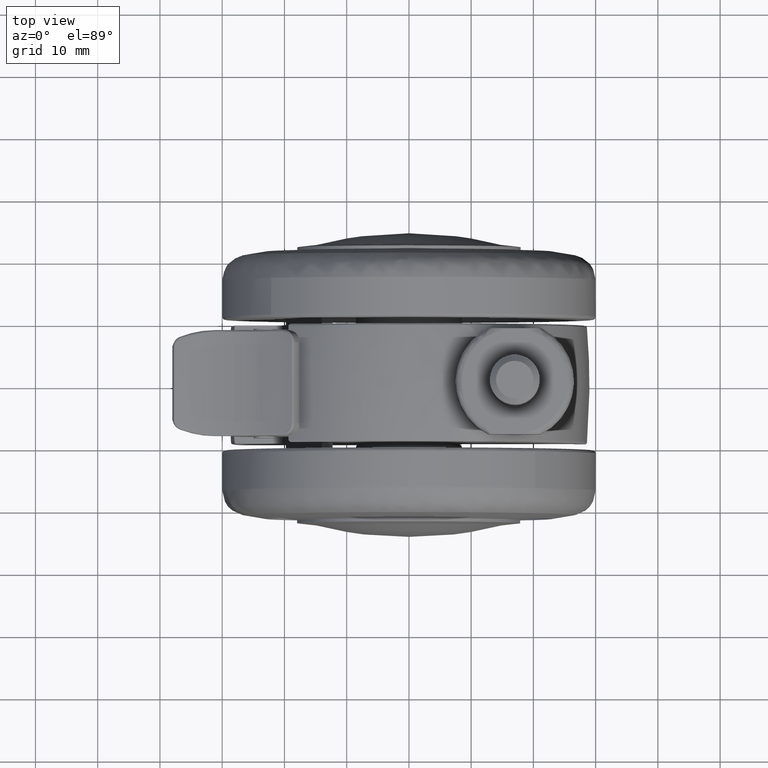
[diagram: clean part render]
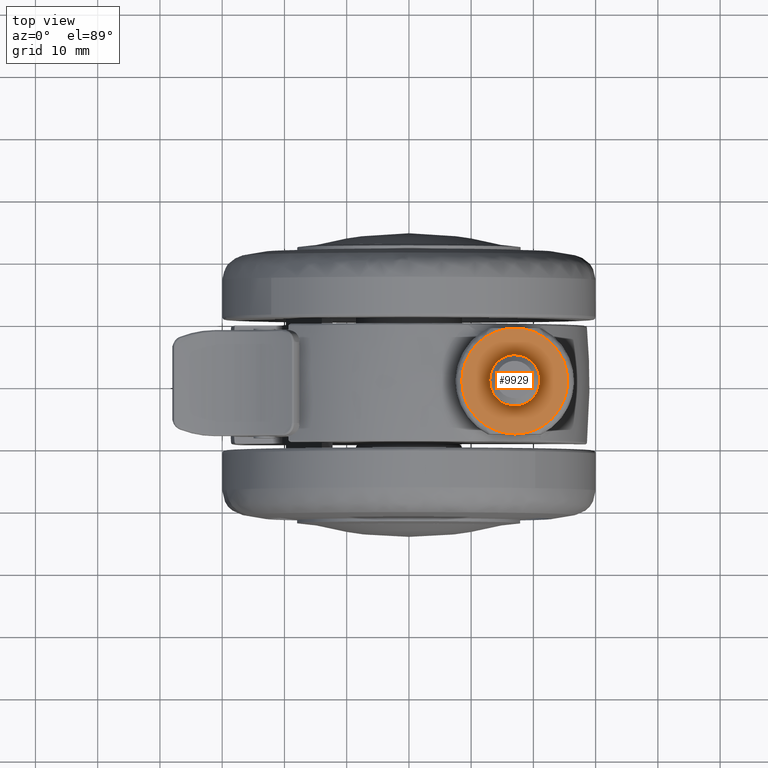
[diagram: same view with one face highlighted and labeled with its STEP entity id]
A machine part, top view. The second image highlights one B-rep face of the part: STEP entity #9929.
In plain terms, the highlighted face is a freeform B-spline surface patch.
Its self-contained STEP definition (entity closure, byte-faithful):
#7896=CARTESIAN_POINT('',(16.755805841640679,3.992539193674018,38.500000000000000));
#7897=VERTEX_POINT('',#7896);
#7903=CARTESIAN_POINT('',(13.0,0.0,38.500000000000000));
#7904=VERTEX_POINT('',#7903);
#7905=CARTESIAN_POINT('',(13.0,0.0,38.500000000000000));
#7906=CARTESIAN_POINT('',(13.000000000000004,3.762824267207531,38.500000000000007));
#7907=CARTESIAN_POINT('',(16.755805841640683,3.992539193674018,38.500000000000000));
#7915=(BOUNDED_CURVE()B_SPLINE_CURVE(2,(#7905,#7906,#7907),.UNSPECIFIED.,.F.,.U.)B_SPLINE_CURVE_WITH_KNOTS((3,3),(0.500000000000000,0.739332962222962),.UNSPECIFIED.)CURVE()GEOMETRIC_REPRESENTATION_ITEM()RATIONAL_B_SPLINE_CURVE((1.0,0.719603993305433,0.976072041632468))REPRESENTATION_ITEM(''));
#7916=EDGE_CURVE('',#7904,#7897,#7915,.T.);
#7918=CARTESIAN_POINT('',(21.0,0.0,38.500000000000000));
#7919=VERTEX_POINT('',#7918);
#7920=CARTESIAN_POINT('',(21.0,0.0,38.500000000000000));
#7921=CARTESIAN_POINT('',(21.000000000000004,-4.000000000000000,38.500000000000000));
#7922=CARTESIAN_POINT('',(17.0,-4.0,38.500000000000000));
#7923=CARTESIAN_POINT('',(13.000000000000004,-4.000000000000000,38.500000000000000));
#7924=CARTESIAN_POINT('',(13.0,0.0,38.500000000000000));
#7932=(BOUNDED_CURVE()B_SPLINE_CURVE(2,(#7920,#7921,#7922,#7923,#7924),.UNSPECIFIED.,.F.,.U.)B_SPLINE_CURVE_WITH_KNOTS((3,2,3),(0.0,0.250000000000000,0.500000000000000),.UNSPECIFIED.)CURVE()GEOMETRIC_REPRESENTATION_ITEM()RATIONAL_B_SPLINE_CURVE((1.0,0.707106781186548,1.0,0.707106781186548,1.0))REPRESENTATION_ITEM(''));
#7933=EDGE_CURVE('',#7919,#7904,#7932,.T.);
#7935=CARTESIAN_POINT('',(20.744574298804920,1.406471940967762,38.500000000000000));
#7936=VERTEX_POINT('',#7935);
#7937=CARTESIAN_POINT('',(20.744574298804913,1.406471940967762,38.499999999999993));
#7938=CARTESIAN_POINT('',(21.0,0.726429592158103,38.500000000000007));
#7939=CARTESIAN_POINT('',(21.0,0.0,38.500000000000000));
#7947=(BOUNDED_CURVE()B_SPLINE_CURVE(2,(#7937,#7938,#7939),.UNSPECIFIED.,.F.,.U.)B_SPLINE_CURVE_WITH_KNOTS((3,3),(0.940284167237474,1.0),.UNSPECIFIED.)CURVE()GEOMETRIC_REPRESENTATION_ITEM()RATIONAL_B_SPLINE_CURVE((0.893499550155038,0.930038550112232,1.0))REPRESENTATION_ITEM(''));
#7948=EDGE_CURVE('',#7936,#7919,#7947,.T.);
#7988=CARTESIAN_POINT('',(16.755805841640679,3.992539193674018,38.500000000000007));
#7989=CARTESIAN_POINT('',(16.877788946585131,4.000000000000001,38.500000000000007));
#7990=CARTESIAN_POINT('',(17.0,4.0,38.500000000000000));
#7991=CARTESIAN_POINT('',(19.770438314175482,4.000000000000000,38.500000000000000));
#7992=CARTESIAN_POINT('',(20.744574298804920,1.406471940967762,38.500000000000000));
#8000=(BOUNDED_CURVE()B_SPLINE_CURVE(2,(#7988,#7989,#7990,#7991,#7992),.UNSPECIFIED.,.F.,.U.)B_SPLINE_CURVE_WITH_KNOTS((3,2,3),(0.739332962222962,0.750000000000000,0.940284167237474),.UNSPECIFIED.)CURVE()GEOMETRIC_REPRESENTATION_ITEM()RATIONAL_B_SPLINE_CURVE((0.976072041632468,0.987502787881115,1.0,0.777068231074315,0.893499550155038))REPRESENTATION_ITEM(''));
#8001=EDGE_CURVE('',#7897,#7936,#8000,.T.);
#9367=CARTESIAN_POINT('',(17.0,-8.500000000000000,38.500000000000000));
#9368=VERTEX_POINT('',#9367);
#9423=CARTESIAN_POINT('',(17.0,8.500000000000000,38.500000000000000));
#9424=VERTEX_POINT('',#9423);
#9462=CARTESIAN_POINT('',(17.0,-8.500000000000000,38.500000000000000));
#9463=CARTESIAN_POINT('',(25.500000000000007,-8.500000000000002,38.500000000000000));
#9464=CARTESIAN_POINT('',(25.500000000000000,0.0,38.500000000000000));
#9465=CARTESIAN_POINT('',(25.500000000000007,8.500000000000002,38.500000000000000));
#9466=CARTESIAN_POINT('',(17.0,8.500000000000000,38.500000000000000));
#9474=(BOUNDED_CURVE()B_SPLINE_CURVE(2,(#9462,#9463,#9464,#9465,#9466),.UNSPECIFIED.,.F.,.U.)B_SPLINE_CURVE_WITH_KNOTS((3,2,3),(0.0,0.500000000000000,1.0),.UNSPECIFIED.)CURVE()GEOMETRIC_REPRESENTATION_ITEM()RATIONAL_B_SPLINE_CURVE((1.0,0.707106781186548,1.0,0.707106781186548,1.0))REPRESENTATION_ITEM(''));
#9475=EDGE_CURVE('',#9368,#9424,#9474,.T.);
#9734=CARTESIAN_POINT('',(17.0,8.500000000000000,38.500000000000000));
#9735=CARTESIAN_POINT('',(8.500000000000002,8.500000000000002,38.500000000000000));
#9736=CARTESIAN_POINT('',(8.500000000000000,0.0,38.500000000000000));
#9737=CARTESIAN_POINT('',(8.500000000000002,-8.500000000000002,38.500000000000000));
#9738=CARTESIAN_POINT('',(17.0,-8.500000000000000,38.500000000000000));
#9746=(BOUNDED_CURVE()B_SPLINE_CURVE(2,(#9734,#9735,#9736,#9737,#9738),.UNSPECIFIED.,.F.,.U.)B_SPLINE_CURVE_WITH_KNOTS((3,2,3),(0.0,0.500000000000000,1.0),.UNSPECIFIED.)CURVE()GEOMETRIC_REPRESENTATION_ITEM()RATIONAL_B_SPLINE_CURVE((1.0,0.707106781186548,1.0,0.707106781186548,1.0))REPRESENTATION_ITEM(''));
#9747=EDGE_CURVE('',#9424,#9368,#9746,.T.);
#9914=CARTESIAN_POINT('',(7.650850032949333,-9.349149967050698,38.500000000000000));
#9915=CARTESIAN_POINT('',(26.349150423026209,-9.349149967050698,38.500000000000000));
#9916=CARTESIAN_POINT('',(7.650850032949333,9.349150423026233,38.500000000000000));
#9917=CARTESIAN_POINT('',(26.349150423026209,9.349150423026233,38.500000000000000));
#9918=B_SPLINE_SURFACE_WITH_KNOTS('',1,1,((#9914,#9916),(#9915,#9917)),.UNSPECIFIED.,.F.,.F.,.U.,(2,2),(2,2),(0.0,18.698300390076870),(0.0,18.698300390076930),.UNSPECIFIED.);
#9919=ORIENTED_EDGE('',*,*,#9475,.T.);
#9920=ORIENTED_EDGE('',*,*,#9747,.T.);
#9921=EDGE_LOOP('',(#9919,#9920));
#9922=FACE_OUTER_BOUND('',#9921,.T.);
#9923=ORIENTED_EDGE('',*,*,#7933,.T.);
#9924=ORIENTED_EDGE('',*,*,#7916,.T.);
#9925=ORIENTED_EDGE('',*,*,#8001,.T.);
#9926=ORIENTED_EDGE('',*,*,#7948,.T.);
#9927=EDGE_LOOP('',(#9923,#9924,#9925,#9926));
#9928=FACE_BOUND('',#9927,.T.);
#9929=ADVANCED_FACE('',(#9922,#9928),#9918,.T.);